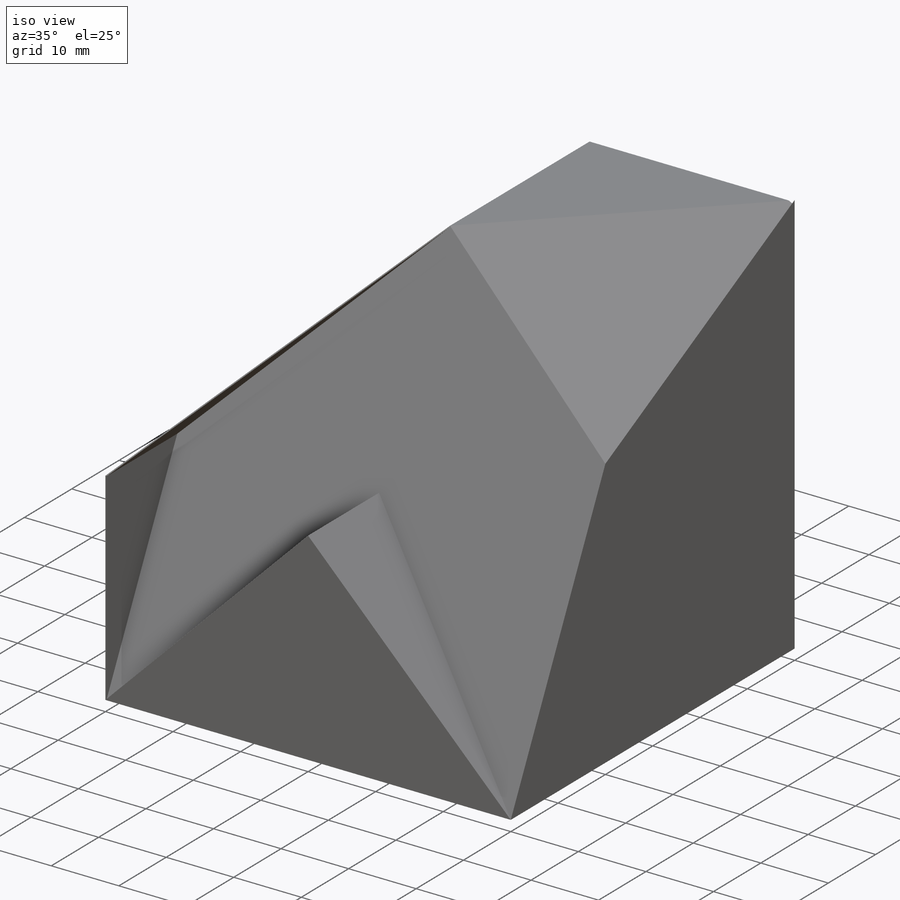
[diagram: iso view]
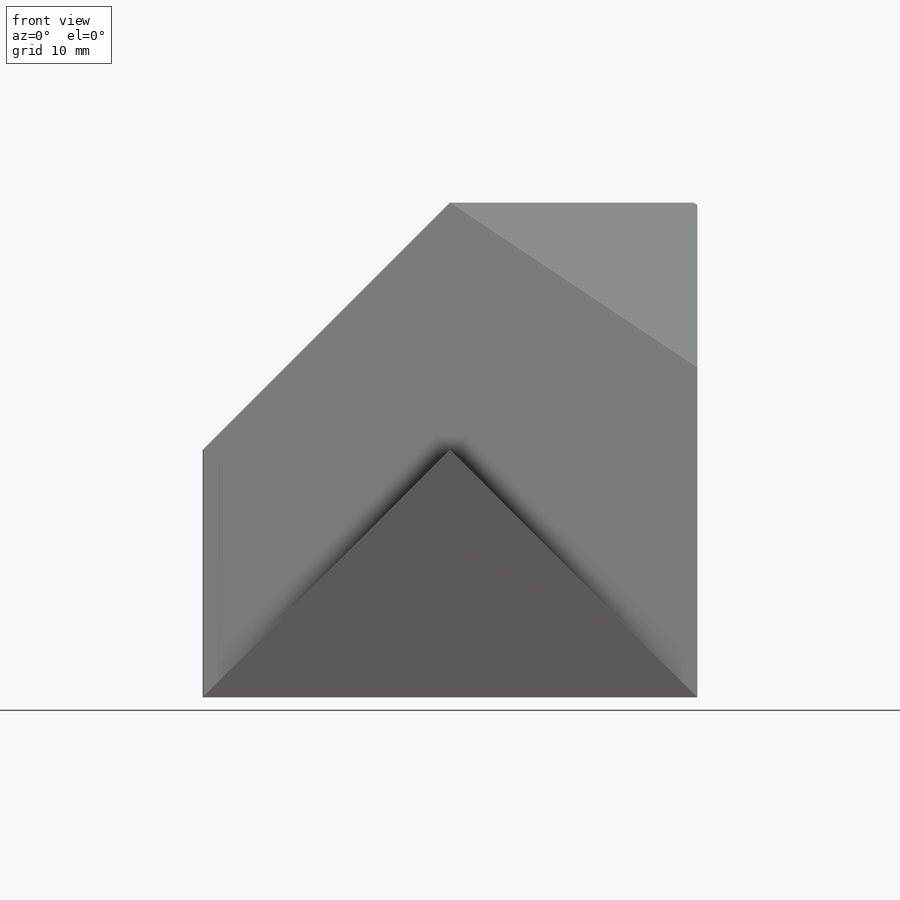
[diagram: front view]
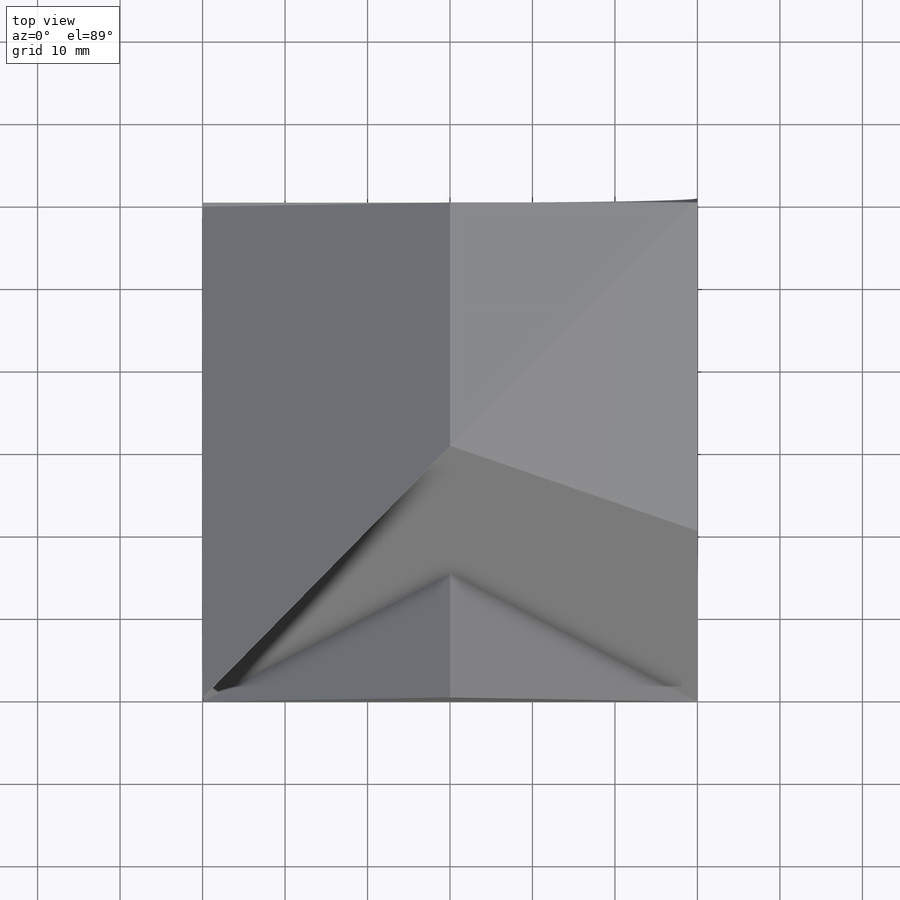
[diagram: top view]
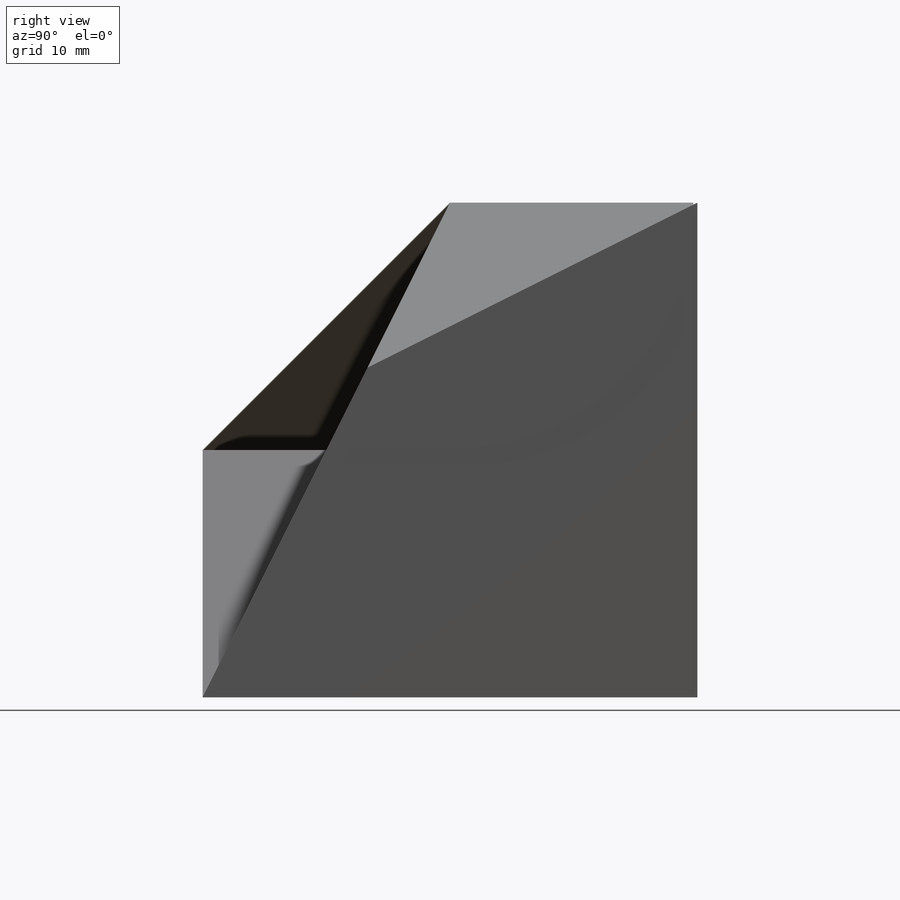
[diagram: right view]
SOLIDWORKS PART (.sldprt)
format: sldprt  version: not decoded by parser v0  size: 272,384 bytes
history: native  units: mm
features: sketch x14, cut_extrude x9, extrude x5, plane x3, material x1 (+13 scaffold rows collapsed)
feature tree (45):
  scaffold x13  (default folders/planes/origin — collapsed)
  material  "Material <not specified>"
  sketch  "Sketch1"  dims[D1=60.0mm D2=60.0mm]
  extrude  "Boss-Extrude1"  Depth=60mm
  sketch  "Sketch2"
  cut_extrude  "Cut-Extrude1"  Depth=60mm
  sketch  "Sketch3"
  cut_extrude  "Cut-Extrude2"  Depth=60mm
  plane  "Plane1"
  sketch  "Sketch4"
  cut_extrude  "Cut-Extrude3"  Depth=60mm
  plane  "Plane2"
  sketch  "Sketch5"
  cut_extrude  "Cut-Extrude4"  Depth=60mm
  sketch  "Sketch6"
  cut_extrude  "Cut-Extrude5"  Depth=60mm
  sketch  "Sketch7"
  cut_extrude  "Cut-Extrude6"  Depth=60mm
  sketch  "Sketch8"
  cut_extrude  "Cut-Extrude7"  Depth=60mm
  sketch  "Sketch9"
  cut_extrude  "Cut-Extrude8"  Depth=60mm
  plane  "Plane3"  Offset=60mm
  sketch  "Sketch11"  dims[D1=30.0mm D2=30.0mm]
  extrude  "Boss-Extrude3"  Depth=60mm
  sketch  "Sketch12"
  extrude  "Boss-Extrude7"  Depth=0.15mm
  sketch  "Sketch13"
  extrude  "Boss-Extrude8"  Depth=0.15mm
  sketch  "Sketch14"  dims[D1=30.0mm]
  cut_extrude  "Cut-Extrude10"  Depth=0.5mm
  sketch  "Sketch15"  dims[D1=30.0mm D2=30.0mm D3=17.0725mm]
  extrude  "Boss-Extrude10"  Depth=0.0001mm
decode coverage: 18 of 28 modeling features carry decoded parameters
note: suppression state not decoded; provenance and decode notes live in map.json
